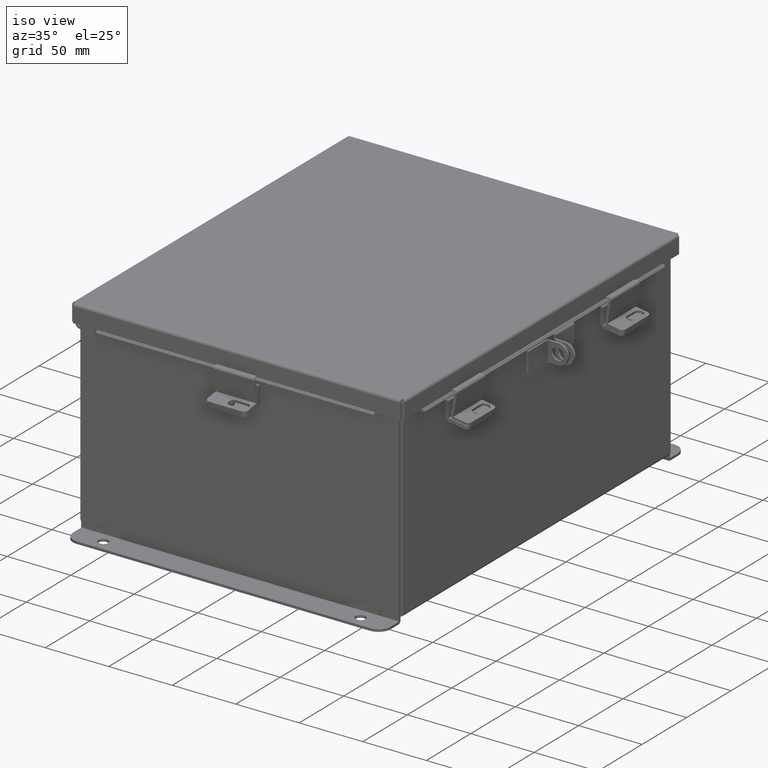
[diagram: clean part render]
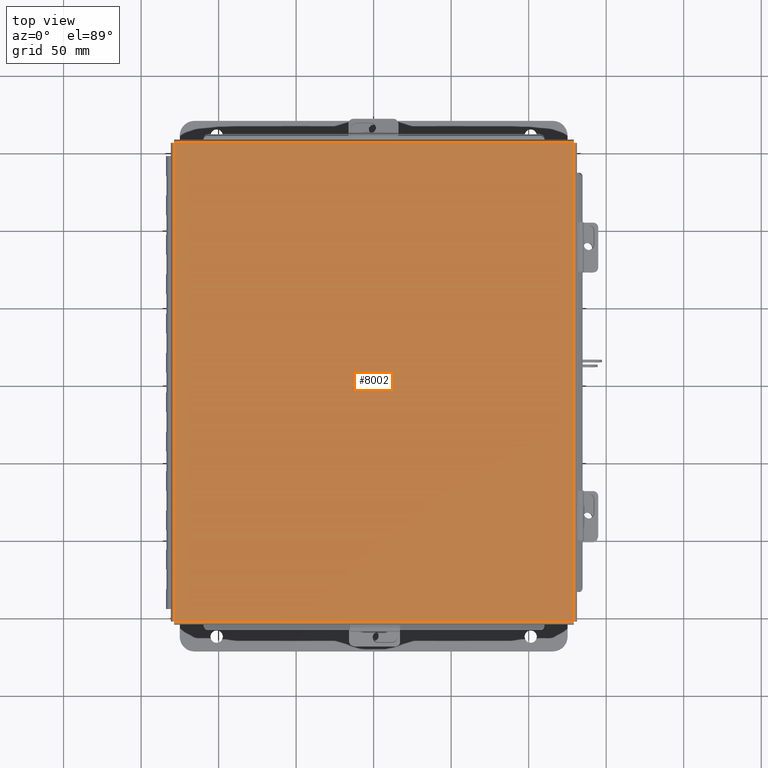
[diagram: tour spotlight — one face highlighted and labeled with its STEP entity id]
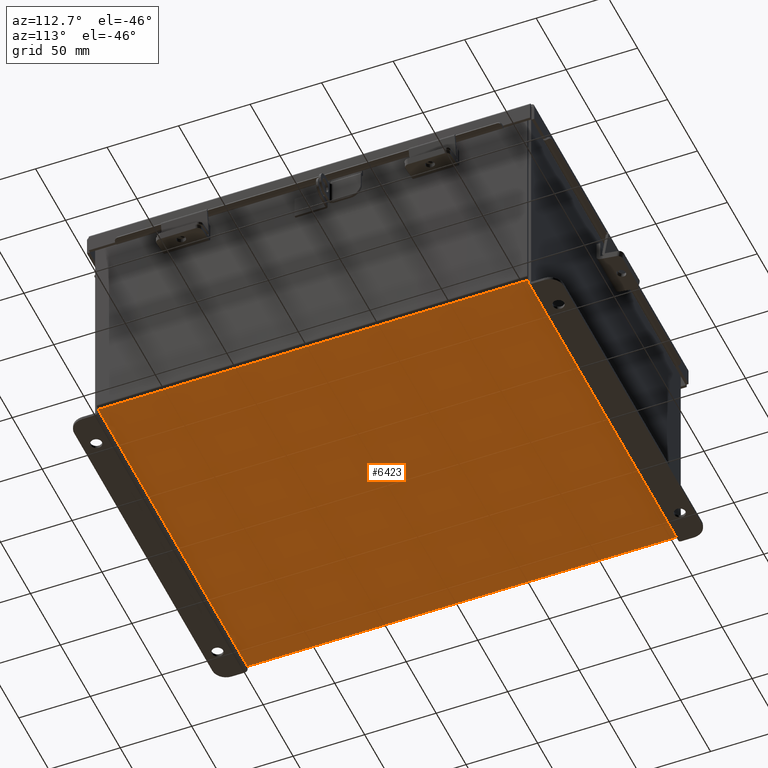
[diagram: tour spotlight — one face highlighted and labeled with its STEP entity id]
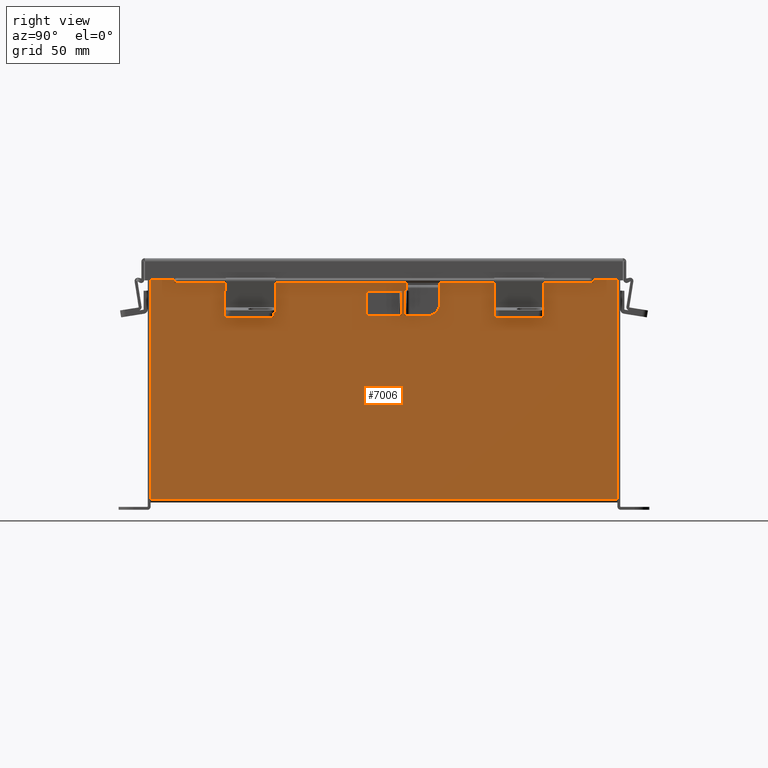
[diagram: tour spotlight — one face highlighted and labeled with its STEP entity id]
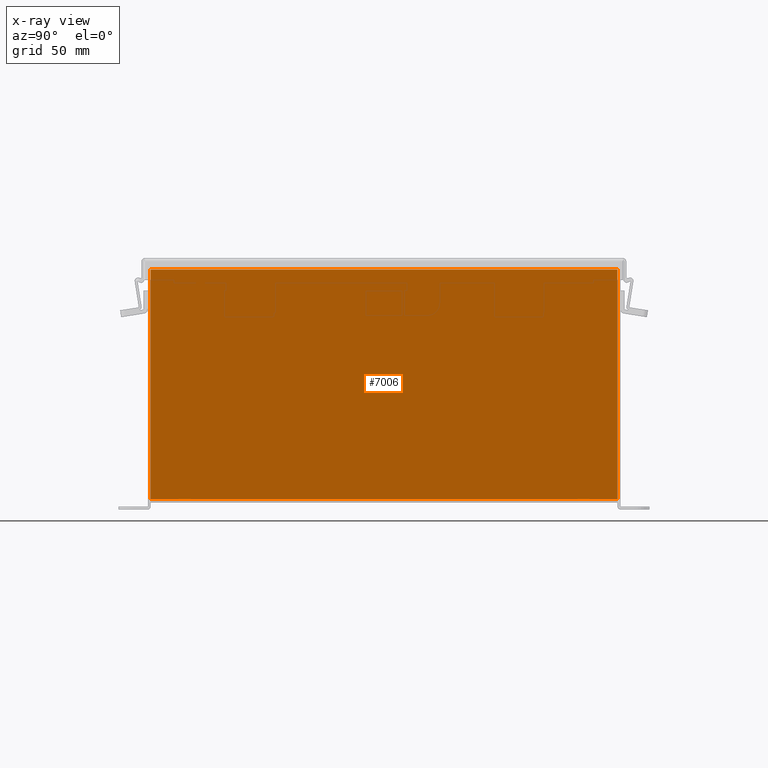
[diagram: x-ray of the same camera — body ghosted, this tour face saturated]
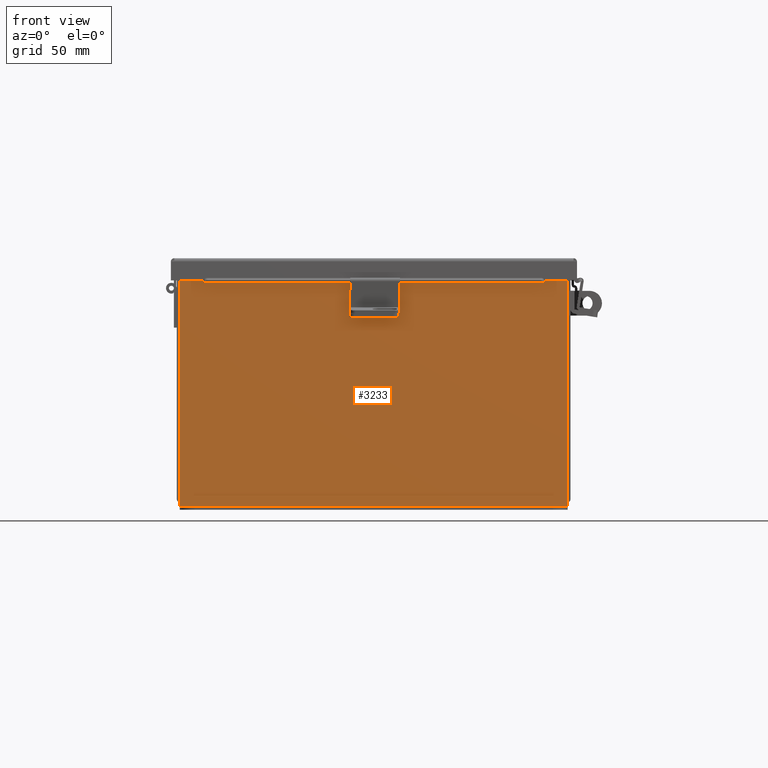
[diagram: tour spotlight — one face highlighted and labeled with its STEP entity id]
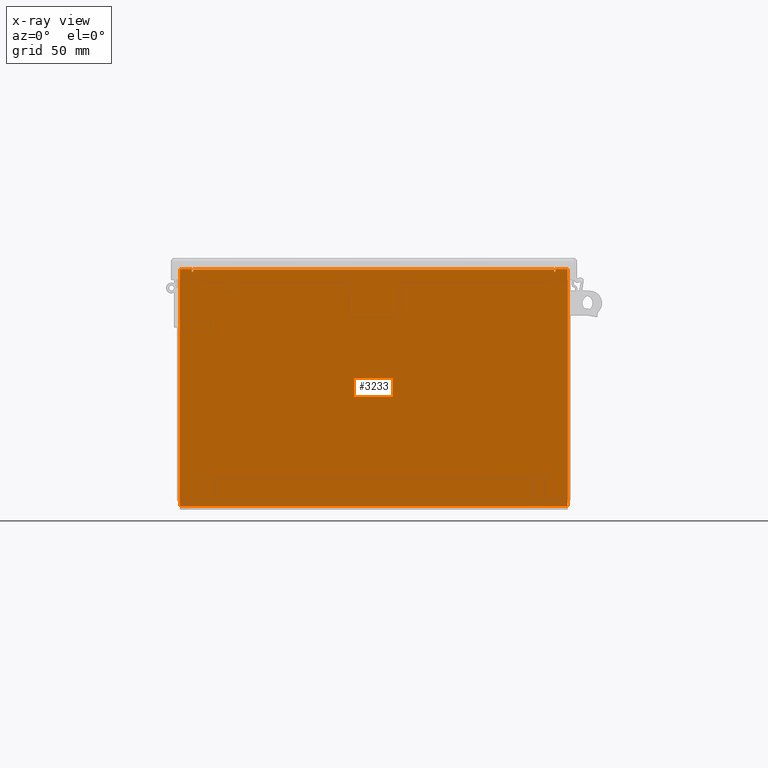
[diagram: x-ray of the same camera — body ghosted, this tour face saturated]
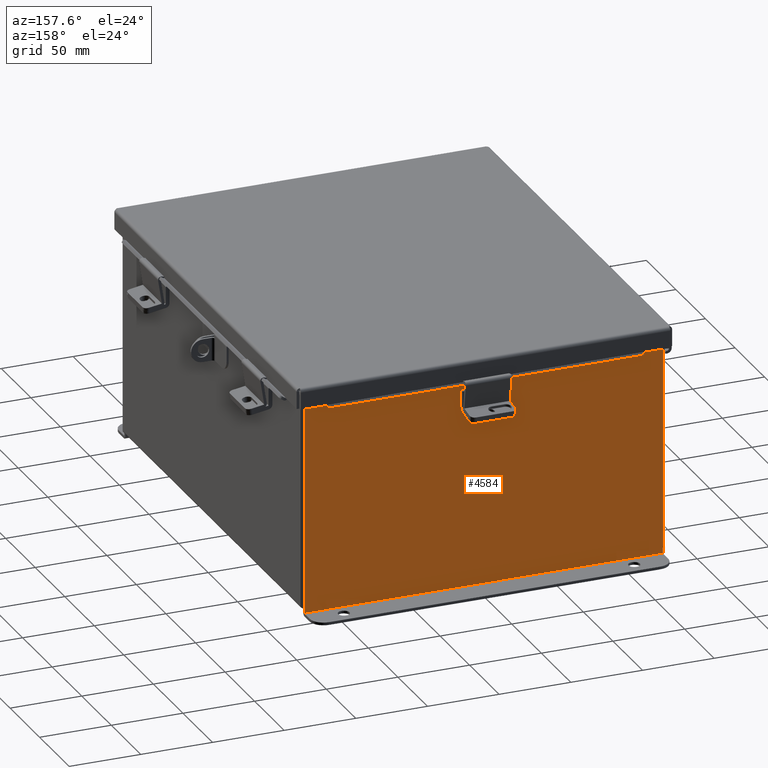
[diagram: tour spotlight — one face highlighted and labeled with its STEP entity id]
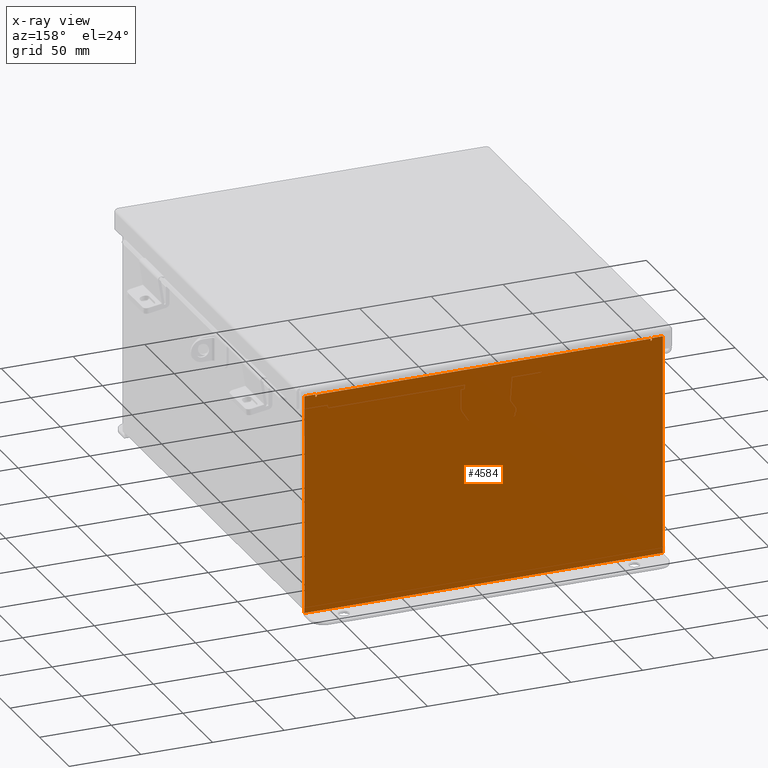
[diagram: x-ray of the same camera — body ghosted, this tour face saturated]
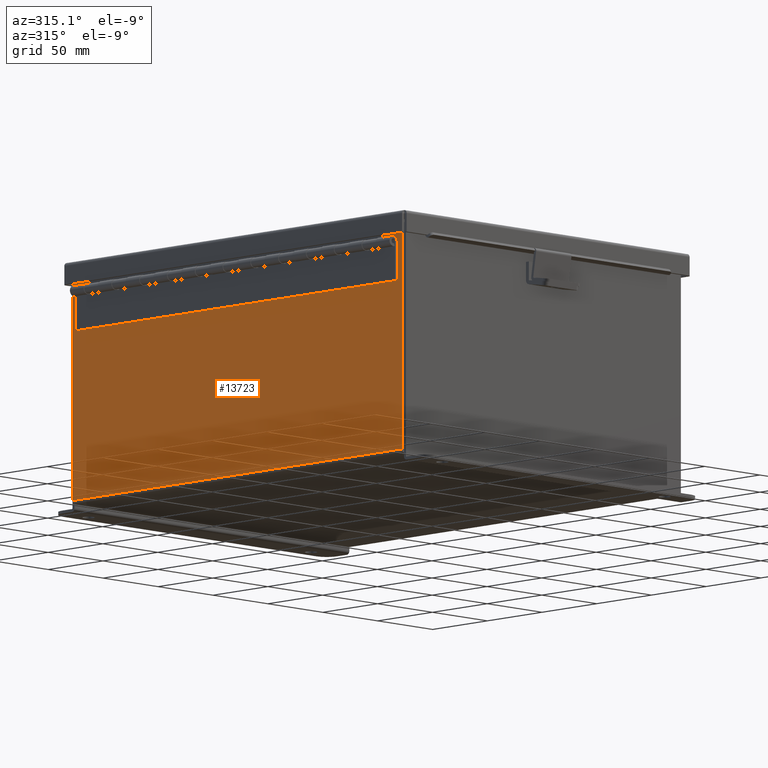
[diagram: tour spotlight — one face highlighted and labeled with its STEP entity id]
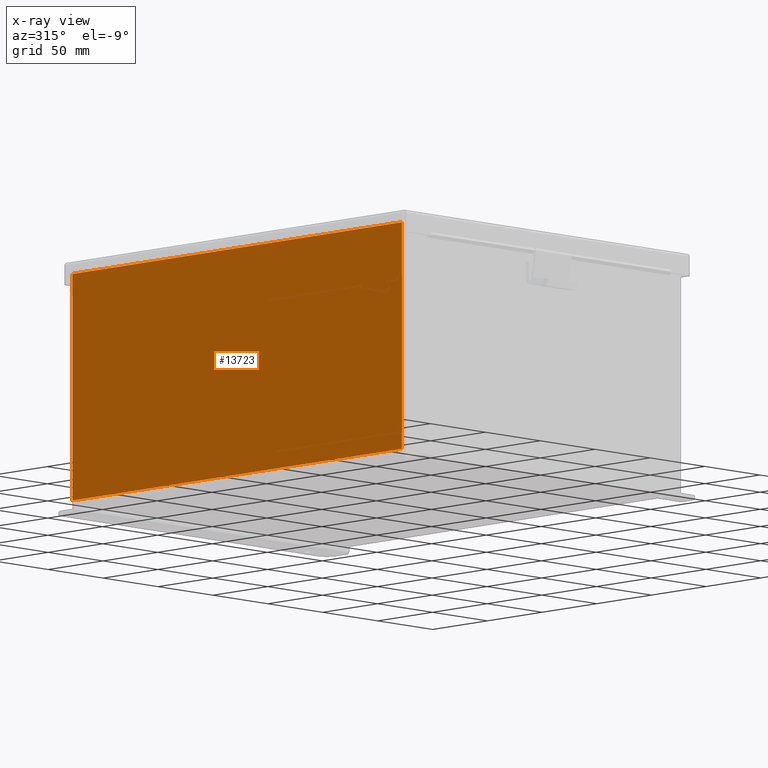
[diagram: x-ray of the same camera — body ghosted, this tour face saturated]
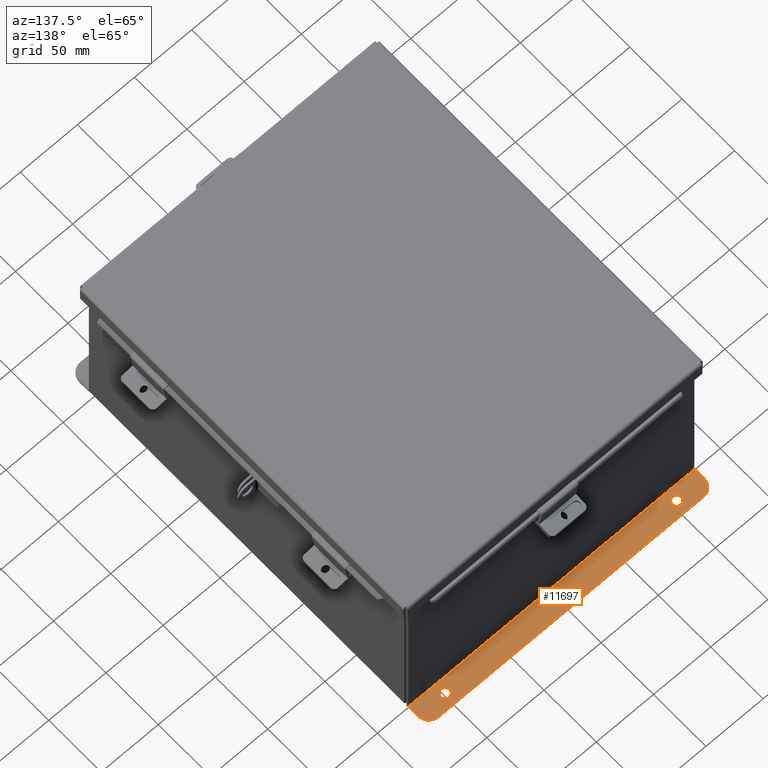
[diagram: tour spotlight — one face highlighted and labeled with its STEP entity id]
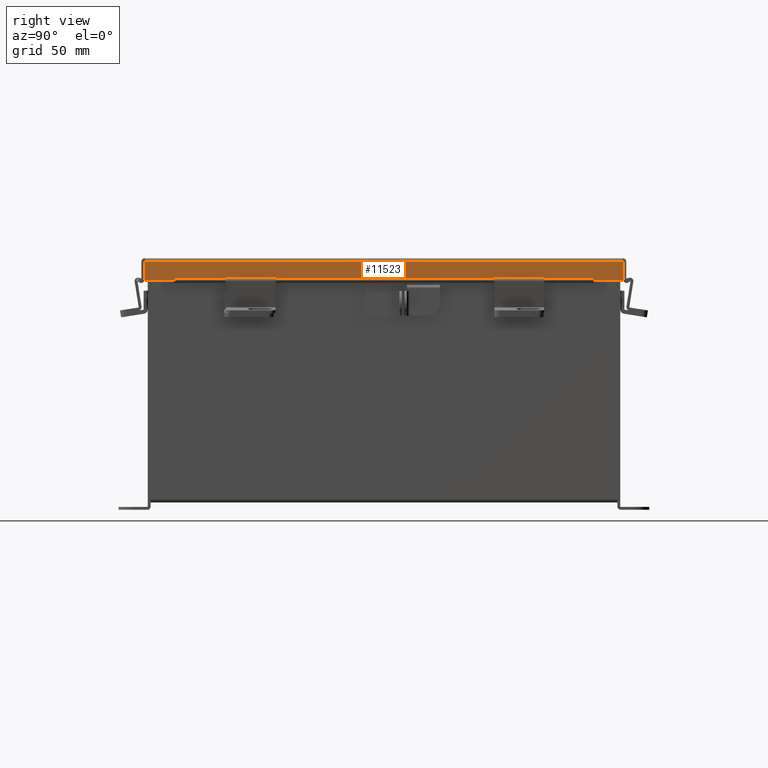
[diagram: tour spotlight — one face highlighted and labeled with its STEP entity id]
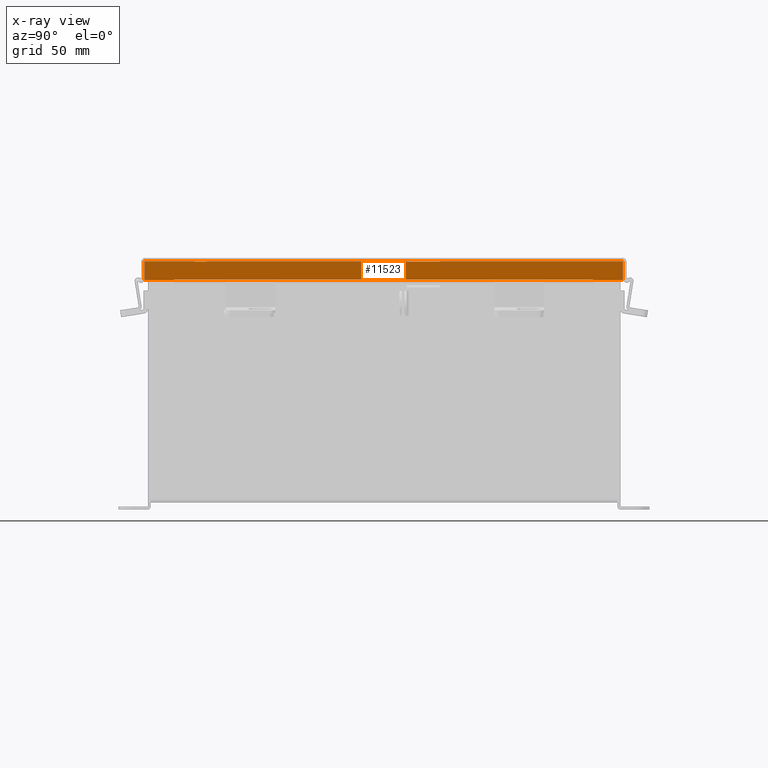
[diagram: x-ray of the same camera — body ghosted, this tour face saturated]
A machine part: a face-by-face anatomy tour. The part has 702 B-rep faces; the first image is the clean iso view, then the 8 largest visible faces are spotlighted one at a time (largest first), each with its STEP entity span.

Face 1 — top view, entity #8002. In plain terms, the highlighted planar face has unit normal (-0, -0, 1).
Definition (entity closure, byte-faithful):
#256 = VECTOR ( 'NONE', #15781, 39.37007874015748100 ) ;
#1142 = LINE ( 'NONE', #16550, #256 ) ;
#1241 = CARTESIAN_POINT ( 'NONE',  ( 5.068550000000001000, -6.068549999999999200, -0.07469999999999993300 ) ) ;
#1806 = CARTESIAN_POINT ( 'NONE',  ( -5.068549999999998300, 6.068550000000001000, -0.07469999999999993300 ) ) ;
#1822 = ORIENTED_EDGE ( 'NONE', *, *, #5499, .T. ) ;
#2080 = VERTEX_POINT ( 'NONE', #4719 ) ;
#2337 = VECTOR ( 'NONE', #4346, 39.37007874015748100 ) ;
#3001 = CARTESIAN_POINT ( 'NONE',  ( -5.074478932188135600, 6.068550000000001000, -0.07469999999999993300 ) ) ;
#3491 = EDGE_CURVE ( 'NONE', #3769, #15117, #1142, .T. ) ;
#3769 = VERTEX_POINT ( 'NONE', #16131 ) ;
#4346 = DIRECTION ( 'NONE',  ( 1.000000000000000000, 0.0000000000000000000, 0.0000000000000000000 ) ) ;
#4606 = DIRECTION ( 'NONE',  ( -1.000000000000000000, 0.0000000000000000000, -0.0000000000000000000 ) ) ;
#4719 = CARTESIAN_POINT ( 'NONE',  ( -5.068549999999998300, -6.068549999999999200, -0.07469999999999993300 ) ) ;
#4849 = ORIENTED_EDGE ( 'NONE', *, *, #13600, .T. ) ;
#4909 = VECTOR ( 'NONE', #12937, 39.37007874015748100 ) ;
#5499 = EDGE_CURVE ( 'NONE', #2080, #5628, #12866, .T. ) ;
#5628 = VERTEX_POINT ( 'NONE', #1806 ) ;
#5986 = VECTOR ( 'NONE', #9674, 39.37007874015748100 ) ;
#7407 = EDGE_CURVE ( 'NONE', #15117, #2080, #8956, .T. ) ;
#8002 = ADVANCED_FACE ( 'NONE', ( #10884 ), #11449, .T. ) ;
#8956 = LINE ( 'NONE', #17058, #4909 ) ;
#9674 = DIRECTION ( 'NONE',  ( -0.0000000000000000000, 1.000000000000000000, -0.0000000000000000000 ) ) ;
#10144 = ORIENTED_EDGE ( 'NONE', *, *, #3491, .T. ) ;
#10804 = EDGE_LOOP ( 'NONE', ( #4849, #10144, #16832, #1822 ) ) ;
#10884 = FACE_OUTER_BOUND ( 'NONE', #10804, .T. ) ;
#11449 = PLANE ( 'NONE',  #17426 ) ;
#12829 = DIRECTION ( 'NONE',  ( 0.0000000000000000000, 0.0000000000000000000, -1.000000000000000000 ) ) ;
#12866 = LINE ( 'NONE', #14228, #5986 ) ;
#12937 = DIRECTION ( 'NONE',  ( -1.000000000000000000, 0.0000000000000000000, 0.0000000000000000000 ) ) ;
#13282 = LINE ( 'NONE', #3001, #2337 ) ;
#13600 = EDGE_CURVE ( 'NONE', #5628, #3769, #13282, .T. ) ;
#14228 = CARTESIAN_POINT ( 'NONE',  ( -5.068549999999998300, -6.074478932188134700, -0.07469999999999993300 ) ) ;
#15117 = VERTEX_POINT ( 'NONE', #1241 ) ;
#15536 = CARTESIAN_POINT ( 'NONE',  ( 0.0000000000000000000, 0.0000000000000000000, -0.07470000000000000300 ) ) ;
#15781 = DIRECTION ( 'NONE',  ( -0.0000000000000000000, -1.000000000000000000, -0.0000000000000000000 ) ) ;
#16131 = CARTESIAN_POINT ( 'NONE',  ( 5.068550000000001000, 6.068550000000001000, -0.07469999999999993300 ) ) ;
#16550 = CARTESIAN_POINT ( 'NONE',  ( 5.068550000000001000, 6.074478932188137400, -0.07469999999999993300 ) ) ;
#16832 = ORIENTED_EDGE ( 'NONE', *, *, #7407, .T. ) ;
#17058 = CARTESIAN_POINT ( 'NONE',  ( 5.074478932188137400, -6.068549999999999200, -0.07469999999999993300 ) ) ;
#17426 = AXIS2_PLACEMENT_3D ( 'NONE', #15536, #12829, #4606 ) ;

Face 2 — auxiliary view, entity #6423. In plain terms, the highlighted planar face has unit normal (0, 0, -1).
Definition (entity closure, byte-faithful):
#90 = VERTEX_POINT ( 'NONE', #12421 ) ;
#866 = VECTOR ( 'NONE', #1038, 39.37007874015748100 ) ;
#982 = CARTESIAN_POINT ( 'NONE',  ( -5.000000000000000000, -5.925300000000000000, -0.07470000000000000300 ) ) ;
#1038 = DIRECTION ( 'NONE',  ( 1.000000000000000000, 0.0000000000000000000, 0.0000000000000000000 ) ) ;
#1229 = VECTOR ( 'NONE', #1921, 39.37007874015748100 ) ;
#1887 = CARTESIAN_POINT ( 'NONE',  ( 4.912300000000000100, -5.925300000000000000, -0.07470000000000000300 ) ) ;
#1921 = DIRECTION ( 'NONE',  ( -1.000000000000000000, -0.0000000000000000000, -0.0000000000000000000 ) ) ;
#2365 = EDGE_CURVE ( 'NONE', #90, #4526, #5053, .T. ) ;
#2686 = ORIENTED_EDGE ( 'NONE', *, *, #2365, .T. ) ;
#2933 = DIRECTION ( 'NONE',  ( -0.0000000000000000000, -1.000000000000000000, -0.0000000000000000000 ) ) ;
#3611 = ORIENTED_EDGE ( 'NONE', *, *, #5658, .T. ) ;
#3923 = ORIENTED_EDGE ( 'NONE', *, *, #4809, .F. ) ;
#4526 = VERTEX_POINT ( 'NONE', #1887 ) ;
#4539 = VERTEX_POINT ( 'NONE', #12473 ) ;
#4809 = EDGE_CURVE ( 'NONE', #4539, #4526, #11804, .T. ) ;
#4978 = VERTEX_POINT ( 'NONE', #15654 ) ;
#5053 = LINE ( 'NONE', #6325, #16439 ) ;
#5658 = EDGE_CURVE ( 'NONE', #4539, #4978, #14335, .T. ) ;
#6325 = CARTESIAN_POINT ( 'NONE',  ( 4.912300000000000100, 5.925300000000000000, -0.07469999999999994700 ) ) ;
#6423 = ADVANCED_FACE ( 'NONE', ( #7676 ), #12256, .T. ) ;
#7676 = FACE_OUTER_BOUND ( 'NONE', #8462, .T. ) ;
#7905 = VECTOR ( 'NONE', #8536, 39.37007874015748100 ) ;
#8462 = EDGE_LOOP ( 'NONE', ( #17031, #2686, #3923, #3611 ) ) ;
#8536 = DIRECTION ( 'NONE',  ( -0.0000000000000000000, 1.000000000000000000, -0.0000000000000000000 ) ) ;
#8775 = CARTESIAN_POINT ( 'NONE',  ( -5.000000000000000000, 5.925300000000000000, -0.07470000000000000300 ) ) ;
#8904 = LINE ( 'NONE', #8775, #1229 ) ;
#8970 = EDGE_CURVE ( 'NONE', #90, #4978, #8904, .T. ) ;
#9737 = CARTESIAN_POINT ( 'NONE',  ( -4.912300000000000100, -5.925300000000000000, -0.07469999999999994700 ) ) ;
#10815 = DIRECTION ( 'NONE',  ( 0.0000000000000000000, 0.0000000000000000000, -1.000000000000000000 ) ) ;
#11784 = CARTESIAN_POINT ( 'NONE',  ( 0.0000000000000000000, 0.0000000000000000000, -0.07470000000000000300 ) ) ;
#11804 = LINE ( 'NONE', #982, #866 ) ;
#12256 = PLANE ( 'NONE',  #15589 ) ;
#12421 = CARTESIAN_POINT ( 'NONE',  ( 4.912300000000000100, 5.925299999999997300, -0.07469999999999994700 ) ) ;
#12473 = CARTESIAN_POINT ( 'NONE',  ( -4.912300000000000100, -5.925299999999997300, -0.07469999999999994700 ) ) ;
#13821 = DIRECTION ( 'NONE',  ( -1.000000000000000000, 0.0000000000000000000, -0.0000000000000000000 ) ) ;
#14335 = LINE ( 'NONE', #9737, #7905 ) ;
#15589 = AXIS2_PLACEMENT_3D ( 'NONE', #11784, #10815, #13821 ) ;
#15654 = CARTESIAN_POINT ( 'NONE',  ( -4.912300000000000100, 5.925300000000000000, -0.07470000000000000300 ) ) ;
#16439 = VECTOR ( 'NONE', #2933, 39.37007874015748100 ) ;
#17031 = ORIENTED_EDGE ( 'NONE', *, *, #8970, .F. ) ;

Face 3 — right view, entity #7006. An x-ray twin of the same camera follows (body ghosted, this face saturated) — the face is partly hidden behind the body. In plain terms, the highlighted planar face has unit normal (-1, 0, 0).
Definition (entity closure, byte-faithful):
#746 = DIRECTION ( 'NONE',  ( -0.0000000000000000000, -1.000000000000000000, -0.0000000000000000000 ) ) ;
#1451 = VECTOR ( 'NONE', #2001, 39.37007874015748100 ) ;
#1454 = CARTESIAN_POINT ( 'NONE',  ( 5.000000000000000000, -5.925300000000000000, 0.01299999999999984300 ) ) ;
#1918 = EDGE_CURVE ( 'NONE', #5980, #5562, #7842, .T. ) ;
#2001 = DIRECTION ( 'NONE',  ( 3.548703509357741800E-015, -1.867738689135653700E-016, 1.000000000000000000 ) ) ;
#2235 = DIRECTION ( 'NONE',  ( -1.000000000000000000, 0.0000000000000000000, 3.548703509357741000E-015 ) ) ;
#2349 = CARTESIAN_POINT ( 'NONE',  ( 5.000000000000021300, 5.925299999999997300, 5.837599999999999200 ) ) ;
#2866 = AXIS2_PLACEMENT_3D ( 'NONE', #17256, #2235, #11803 ) ;
#3897 = VERTEX_POINT ( 'NONE', #12211 ) ;
#4374 = ORIENTED_EDGE ( 'NONE', *, *, #11462, .F. ) ;
#4433 = CARTESIAN_POINT ( 'NONE',  ( 5.000000000000000000, -5.925300000000000000, -1.800458568324353400E-014 ) ) ;
#4649 = LINE ( 'NONE', #10167, #1451 ) ;
#5341 = DIRECTION ( 'NONE',  ( -0.0000000000000000000, -1.000000000000000000, -0.0000000000000000000 ) ) ;
#5562 = VERTEX_POINT ( 'NONE', #1454 ) ;
#5980 = VERTEX_POINT ( 'NONE', #13602 ) ;
#6175 = CARTESIAN_POINT ( 'NONE',  ( 5.000000000000000000, -5.925300000000000000, 0.01299999999999984300 ) ) ;
#7006 = ADVANCED_FACE ( 'NONE', ( #15171 ), #10402, .F. ) ;
#7842 = LINE ( 'NONE', #4433, #14688 ) ;
#9245 = ORIENTED_EDGE ( 'NONE', *, *, #1918, .T. ) ;
#9832 = LINE ( 'NONE', #14899, #13096 ) ;
#10167 = CARTESIAN_POINT ( 'NONE',  ( 5.000000000000000000, 5.925300000000000000, -1.689477243581742800E-014 ) ) ;
#10376 = VERTEX_POINT ( 'NONE', #2349 ) ;
#10402 = PLANE ( 'NONE',  #2866 ) ;
#10414 = EDGE_LOOP ( 'NONE', ( #15751, #9245, #4374, #15292 ) ) ;
#11462 = EDGE_CURVE ( 'NONE', #3897, #5562, #14834, .T. ) ;
#11803 = DIRECTION ( 'NONE',  ( 3.548703509357741000E-015, 0.0000000000000000000, 1.000000000000000000 ) ) ;
#12211 = CARTESIAN_POINT ( 'NONE',  ( 5.000000000000000000, 5.925299999999998200, 0.01299999999999984300 ) ) ;
#12969 = EDGE_CURVE ( 'NONE', #10376, #5980, #9832, .T. ) ;
#13096 = VECTOR ( 'NONE', #5341, 39.37007874015748100 ) ;
#13602 = CARTESIAN_POINT ( 'NONE',  ( 5.000000000000021300, -5.925300000000000000, 5.837599999999999200 ) ) ;
#14405 = VECTOR ( 'NONE', #746, 39.37007874015748100 ) ;
#14610 = DIRECTION ( 'NONE',  ( -3.548703509357741800E-015, 0.0000000000000000000, -1.000000000000000000 ) ) ;
#14688 = VECTOR ( 'NONE', #14610, 39.37007874015748100 ) ;
#14834 = LINE ( 'NONE', #6175, #14405 ) ;
#14899 = CARTESIAN_POINT ( 'NONE',  ( 5.000000000000021300, 5.925299999999998200, 5.837599999999999200 ) ) ;
#15171 = FACE_OUTER_BOUND ( 'NONE', #10414, .T. ) ;
#15292 = ORIENTED_EDGE ( 'NONE', *, *, #15463, .T. ) ;
#15463 = EDGE_CURVE ( 'NONE', #3897, #10376, #4649, .T. ) ;
#15751 = ORIENTED_EDGE ( 'NONE', *, *, #12969, .T. ) ;
#17256 = CARTESIAN_POINT ( 'NONE',  ( 5.000000000000000000, 0.0000000000000000000, -1.800458568324353400E-014 ) ) ;

Face 4 — front view, entity #3233. An x-ray twin of the same camera follows (body ghosted, this face saturated) — the face is partly hidden behind the body. In plain terms, the highlighted planar face has unit normal (-0, 1, -0).
Definition (entity closure, byte-faithful):
#4 = CARTESIAN_POINT ( 'NONE',  ( -4.925300000000000900, -8.741913579725642300E-015, -3.099299999999999500 ) ) ;
#203 = LINE ( 'NONE', #2339, #9374 ) ;
#312 = CARTESIAN_POINT ( 'NONE',  ( 4.619649999999999100, 8.741913579725642300E-015, 2.874949999999999700 ) ) ;
#339 = CARTESIAN_POINT ( 'NONE',  ( -4.619650000000000000, 0.0000000000000000000, 2.925300000000000000 ) ) ;
#554 = CIRCLE ( 'NONE', #15173, 0.01867500000000003900 ) ;
#571 = CARTESIAN_POINT ( 'NONE',  ( -4.925300000000000000, -8.741913579725642300E-015, -3.099299999999999500 ) ) ;
#716 = LINE ( 'NONE', #10626, #7566 ) ;
#943 = DIRECTION ( 'NONE',  ( 1.000000000000000000, 4.910036603141682400E-031, 0.0000000000000000000 ) ) ;
#1007 = LINE ( 'NONE', #13766, #8264 ) ;
#1236 = EDGE_LOOP ( 'NONE', ( #11552, #17363, #1947, #9112, #3504, #10234, #13730, #13326, #8343, #11144, #6650, #6209 ) ) ;
#1391 = CARTESIAN_POINT ( 'NONE',  ( -4.925300000000000000, 0.0000000000000000000, 2.925300000000001300 ) ) ;
#1808 = VERTEX_POINT ( 'NONE', #3968 ) ;
#1947 = ORIENTED_EDGE ( 'NONE', *, *, #2972, .F. ) ;
#2339 = CARTESIAN_POINT ( 'NONE',  ( 4.582299999999999200, 0.0000000000000000000, 0.0000000000000000000 ) ) ;
#2972 = EDGE_CURVE ( 'NONE', #11763, #7408, #716, .T. ) ;
#3187 = LINE ( 'NONE', #11558, #16902 ) ;
#3189 = CARTESIAN_POINT ( 'NONE',  ( -4.619650000000000000, 0.0000000000000000000, 2.874949999999998800 ) ) ;
#3208 = LINE ( 'NONE', #1391, #16928 ) ;
#3233 = ADVANCED_FACE ( 'NONE', ( #3719 ), #12887, .F. ) ;
#3504 = ORIENTED_EDGE ( 'NONE', *, *, #13392, .F. ) ;
#3719 = FACE_OUTER_BOUND ( 'NONE', #1236, .T. ) ;
#3737 = VERTEX_POINT ( 'NONE', #9076 ) ;
#3968 = CARTESIAN_POINT ( 'NONE',  ( 4.582299999999999200, 8.741913579725642300E-015, 2.874949999999999700 ) ) ;
#4096 = AXIS2_PLACEMENT_3D ( 'NONE', #5829, #15431, #7207 ) ;
#4434 = VECTOR ( 'NONE', #15015, 39.37007874015748100 ) ;
#5186 = CARTESIAN_POINT ( 'NONE',  ( -4.619650000000000000, 0.0000000000000000000, 0.0000000000000000000 ) ) ;
#5489 = LINE ( 'NONE', #6684, #11911 ) ;
#5631 = VERTEX_POINT ( 'NONE', #3189 ) ;
#5829 = CARTESIAN_POINT ( 'NONE',  ( -4.600975000000000000, 0.0000000000000000000, 2.874949999999998800 ) ) ;
#5842 = VERTEX_POINT ( 'NONE', #571 ) ;
#5984 = EDGE_CURVE ( 'NONE', #5842, #3737, #3208, .T. ) ;
#6209 = ORIENTED_EDGE ( 'NONE', *, *, #9180, .T. ) ;
#6650 = ORIENTED_EDGE ( 'NONE', *, *, #5984, .T. ) ;
#6684 = CARTESIAN_POINT ( 'NONE',  ( -4.925300000000000000, 0.0000000000000000000, 2.925300000000001300 ) ) ;
#7170 = DIRECTION ( 'NONE',  ( 1.000000000000000000, 4.910036603141682400E-031, -0.0000000000000000000 ) ) ;
#7207 = DIRECTION ( 'NONE',  ( 0.0000000000000000000, 0.0000000000000000000, -1.000000000000000000 ) ) ;
#7272 = EDGE_CURVE ( 'NONE', #11763, #16415, #13901, .T. ) ;
#7363 = DIRECTION ( 'NONE',  ( 0.0000000000000000000, 0.0000000000000000000, -1.000000000000000000 ) ) ;
#7408 = VERTEX_POINT ( 'NONE', #7459 ) ;
#7458 = CARTESIAN_POINT ( 'NONE',  ( 4.582299999999999200, 8.741913579725642300E-015, 2.912299999999998800 ) ) ;
#7459 = CARTESIAN_POINT ( 'NONE',  ( -4.582300000000000000, 0.0000000000000000000, 2.874949999999998800 ) ) ;
#7465 = VERTEX_POINT ( 'NONE', #14463 ) ;
#7566 = VECTOR ( 'NONE', #9471, 39.37007874015748100 ) ;
#7712 = CARTESIAN_POINT ( 'NONE',  ( 4.600974999999999100, 8.741913579725642300E-015, 2.874949999999999700 ) ) ;
#8066 = EDGE_CURVE ( 'NONE', #13974, #13934, #3187, .T. ) ;
#8179 = LINE ( 'NONE', #9109, #15502 ) ;
#8264 = VECTOR ( 'NONE', #16537, 39.37007874015748100 ) ;
#8343 = ORIENTED_EDGE ( 'NONE', *, *, #8066, .T. ) ;
#8424 = EDGE_CURVE ( 'NONE', #5842, #13934, #8488, .T. ) ;
#8488 = LINE ( 'NONE', #4, #4434 ) ;
#8728 = EDGE_CURVE ( 'NONE', #7465, #14184, #1007, .T. ) ;
#8786 = DIRECTION ( 'NONE',  ( 0.0000000000000000000, 0.0000000000000000000, -1.000000000000000000 ) ) ;
#8838 = VERTEX_POINT ( 'NONE', #339 ) ;
#9076 = CARTESIAN_POINT ( 'NONE',  ( -4.925300000000000000, 0.0000000000000000000, 2.925300000000001300 ) ) ;
#9078 = DIRECTION ( 'NONE',  ( 0.0000000000000000000, 0.0000000000000000000, -1.000000000000000000 ) ) ;
#9109 = CARTESIAN_POINT ( 'NONE',  ( -4.925300000000000000, 0.0000000000000000000, 2.925300000000001300 ) ) ;
#9112 = ORIENTED_EDGE ( 'NONE', *, *, #7272, .T. ) ;
#9180 = EDGE_CURVE ( 'NONE', #3737, #8838, #5489, .T. ) ;
#9374 = VECTOR ( 'NONE', #13477, 39.37007874015748100 ) ;
#9471 = DIRECTION ( 'NONE',  ( 0.0000000000000000000, 0.0000000000000000000, -1.000000000000000000 ) ) ;
#9598 = DIRECTION ( 'NONE',  ( 0.0000000000000000000, 0.0000000000000000000, 1.000000000000000000 ) ) ;
#9767 = AXIS2_PLACEMENT_3D ( 'NONE', #13074, #13135, #7363 ) ;
#10234 = ORIENTED_EDGE ( 'NONE', *, *, #15971, .F. ) ;
#10626 = CARTESIAN_POINT ( 'NONE',  ( -4.582300000000000000, 0.0000000000000000000, 0.0000000000000000000 ) ) ;
#11144 = ORIENTED_EDGE ( 'NONE', *, *, #8424, .F. ) ;
#11552 = ORIENTED_EDGE ( 'NONE', *, *, #16640, .F. ) ;
#11558 = CARTESIAN_POINT ( 'NONE',  ( 4.925299999999999100, 8.741913579725642300E-015, 2.925300000000000000 ) ) ;
#11668 = EDGE_CURVE ( 'NONE', #7465, #13974, #8179, .T. ) ;
#11763 = VERTEX_POINT ( 'NONE', #16236 ) ;
#11911 = VECTOR ( 'NONE', #17633, 39.37007874015748100 ) ;
#11997 = EDGE_CURVE ( 'NONE', #7408, #5631, #12689, .T. ) ;
#12689 = CIRCLE ( 'NONE', #4096, 0.01867500000000003900 ) ;
#12887 = PLANE ( 'NONE',  #9767 ) ;
#13074 = CARTESIAN_POINT ( 'NONE',  ( 0.0000000000000000000, 0.0000000000000000000, 0.0000000000000000000 ) ) ;
#13135 = DIRECTION ( 'NONE',  ( -4.910036603141682400E-031, -1.000000000000000000, -0.0000000000000000000 ) ) ;
#13326 = ORIENTED_EDGE ( 'NONE', *, *, #11668, .T. ) ;
#13392 = EDGE_CURVE ( 'NONE', #1808, #16415, #203, .T. ) ;
#13413 = DIRECTION ( 'NONE',  ( 0.0000000000000000000, 0.0000000000000000000, 1.000000000000000000 ) ) ;
#13423 = VECTOR ( 'NONE', #13413, 39.37007874015748100 ) ;
#13458 = CARTESIAN_POINT ( 'NONE',  ( 4.925299999999999100, 8.741913579725642300E-015, 2.925300000000000000 ) ) ;
#13477 = DIRECTION ( 'NONE',  ( 0.0000000000000000000, 0.0000000000000000000, 1.000000000000000000 ) ) ;
#13730 = ORIENTED_EDGE ( 'NONE', *, *, #8728, .F. ) ;
#13766 = CARTESIAN_POINT ( 'NONE',  ( 4.619649999999937000, 0.0000000000000000000, -9.998563656811202900E-014 ) ) ;
#13901 = LINE ( 'NONE', #15390, #14332 ) ;
#13934 = VERTEX_POINT ( 'NONE', #17386 ) ;
#13974 = VERTEX_POINT ( 'NONE', #13458 ) ;
#14184 = VERTEX_POINT ( 'NONE', #312 ) ;
#14332 = VECTOR ( 'NONE', #7170, 39.37007874015748100 ) ;
#14463 = CARTESIAN_POINT ( 'NONE',  ( 4.619649999999999100, 8.741913579725642300E-015, 2.925300000000001300 ) ) ;
#15015 = DIRECTION ( 'NONE',  ( 1.000000000000000000, 4.910036603141682400E-031, -0.0000000000000000000 ) ) ;
#15173 = AXIS2_PLACEMENT_3D ( 'NONE', #7712, #17304, #9078 ) ;
#15390 = CARTESIAN_POINT ( 'NONE',  ( -4.582300000000000000, 2.185478394931410600E-015, 2.912300000000000100 ) ) ;
#15431 = DIRECTION ( 'NONE',  ( 4.910036603141682400E-031, 1.000000000000000000, -0.0000000000000000000 ) ) ;
#15502 = VECTOR ( 'NONE', #943, 39.37007874015748100 ) ;
#15971 = EDGE_CURVE ( 'NONE', #14184, #1808, #554, .T. ) ;
#16236 = CARTESIAN_POINT ( 'NONE',  ( -4.582300000000000000, 2.185478394931410600E-015, 2.912300000000000100 ) ) ;
#16415 = VERTEX_POINT ( 'NONE', #7458 ) ;
#16537 = DIRECTION ( 'NONE',  ( -2.170286390199955400E-014, -7.888609052210118100E-031, -1.000000000000000000 ) ) ;
#16640 = EDGE_CURVE ( 'NONE', #5631, #8838, #17048, .T. ) ;
#16902 = VECTOR ( 'NONE', #8786, 39.37007874015748100 ) ;
#16928 = VECTOR ( 'NONE', #9598, 39.37007874015748100 ) ;
#17048 = LINE ( 'NONE', #5186, #13423 ) ;
#17304 = DIRECTION ( 'NONE',  ( 4.910036603141682400E-031, 1.000000000000000000, -0.0000000000000000000 ) ) ;
#17363 = ORIENTED_EDGE ( 'NONE', *, *, #11997, .F. ) ;
#17386 = CARTESIAN_POINT ( 'NONE',  ( 4.925299999999999100, 0.0000000000000000000, -3.099299999999999500 ) ) ;
#17633 = DIRECTION ( 'NONE',  ( 1.000000000000000000, 4.910036603141682400E-031, 0.0000000000000000000 ) ) ;

Face 5 — auxiliary view, entity #4584. An x-ray twin of the same camera follows (body ghosted, this face saturated) — the face is partly hidden behind the body. In plain terms, the highlighted planar face has unit normal (0, -1, 0).
Definition (entity closure, byte-faithful):
#373 = DIRECTION ( 'NONE',  ( 0.0000000000000000000, -0.0000000000000000000, -1.000000000000000000 ) ) ;
#461 = ORIENTED_EDGE ( 'NONE', *, *, #7491, .F. ) ;
#508 = AXIS2_PLACEMENT_3D ( 'NONE', #3290, #12878, #4658 ) ;
#711 = DIRECTION ( 'NONE',  ( -0.0000000000000000000, -0.0000000000000000000, 1.000000000000000000 ) ) ;
#753 = EDGE_CURVE ( 'NONE', #13737, #14163, #17323, .T. ) ;
#789 = LINE ( 'NONE', #9310, #7633 ) ;
#961 = VERTEX_POINT ( 'NONE', #12542 ) ;
#1031 = CARTESIAN_POINT ( 'NONE',  ( -4.619649999999997400, 0.0000000000000000000, 2.925300000000000500 ) ) ;
#1112 = ORIENTED_EDGE ( 'NONE', *, *, #15710, .F. ) ;
#1155 = VERTEX_POINT ( 'NONE', #16975 ) ;
#1183 = ORIENTED_EDGE ( 'NONE', *, *, #7745, .T. ) ;
#1328 = VERTEX_POINT ( 'NONE', #5890 ) ;
#1936 = LINE ( 'NONE', #10270, #4711 ) ;
#1962 = CARTESIAN_POINT ( 'NONE',  ( 4.582300000000000000, 0.0000000000000000000, 2.874949999999999200 ) ) ;
#2532 = DIRECTION ( 'NONE',  ( 0.0000000000000000000, 0.0000000000000000000, -1.000000000000000000 ) ) ;
#3201 = VECTOR ( 'NONE', #15943, 39.37007874015748100 ) ;
#3245 = VECTOR ( 'NONE', #3251, 39.37007874015748100 ) ;
#3251 = DIRECTION ( 'NONE',  ( 1.000000000000000000, 0.0000000000000000000, 0.0000000000000000000 ) ) ;
#3290 = CARTESIAN_POINT ( 'NONE',  ( 4.600975000000000000, 0.0000000000000000000, 2.874949999999999200 ) ) ;
#3381 = CARTESIAN_POINT ( 'NONE',  ( -4.925300000000000000, 0.0000000000000000000, 2.925300000000000500 ) ) ;
#3465 = ORIENTED_EDGE ( 'NONE', *, *, #17399, .F. ) ;
#3549 = ORIENTED_EDGE ( 'NONE', *, *, #9852, .F. ) ;
#4097 = DIRECTION ( 'NONE',  ( 0.0000000000000000000, 0.0000000000000000000, -1.000000000000000000 ) ) ;
#4401 = EDGE_CURVE ( 'NONE', #14621, #7517, #16964, .T. ) ;
#4479 = DIRECTION ( 'NONE',  ( 1.000000000000000000, -0.0000000000000000000, -0.0000000000000000000 ) ) ;
#4584 = ADVANCED_FACE ( 'NONE', ( #14369 ), #8856, .F. ) ;
#4658 = DIRECTION ( 'NONE',  ( 0.0000000000000000000, 0.0000000000000000000, -1.000000000000000000 ) ) ;
#4711 = VECTOR ( 'NONE', #711, 39.37007874015748100 ) ;
#5164 = DIRECTION ( 'NONE',  ( -0.0000000000000000000, 1.000000000000000000, -0.0000000000000000000 ) ) ;
#5312 = DIRECTION ( 'NONE',  ( 1.000000000000000000, 0.0000000000000000000, 0.0000000000000000000 ) ) ;
#5463 = CARTESIAN_POINT ( 'NONE',  ( -4.925300000000000000, 0.0000000000000000000, 2.925300000000000500 ) ) ;
#5890 = CARTESIAN_POINT ( 'NONE',  ( -4.619649999999997400, 0.0000000000000000000, 2.874949999999999200 ) ) ;
#6037 = LINE ( 'NONE', #13526, #9658 ) ;
#6098 = VECTOR ( 'NONE', #16402, 39.37007874015748100 ) ;
#6473 = ORIENTED_EDGE ( 'NONE', *, *, #8964, .F. ) ;
#6564 = LINE ( 'NONE', #16841, #16662 ) ;
#6865 = DIRECTION ( 'NONE',  ( 0.0000000000000000000, 0.0000000000000000000, 1.000000000000000000 ) ) ;
#7313 = CARTESIAN_POINT ( 'NONE',  ( -4.582299999999997400, 0.0000000000000000000, 2.874949999999999200 ) ) ;
#7491 = EDGE_CURVE ( 'NONE', #14621, #9821, #14104, .T. ) ;
#7517 = VERTEX_POINT ( 'NONE', #13241 ) ;
#7633 = VECTOR ( 'NONE', #2532, 39.37007874015748100 ) ;
#7745 = EDGE_CURVE ( 'NONE', #7517, #1155, #10224, .T. ) ;
#7779 = CARTESIAN_POINT ( 'NONE',  ( -4.925299999999999100, 0.0000000000000000000, -3.099299999999999900 ) ) ;
#8030 = ORIENTED_EDGE ( 'NONE', *, *, #4401, .T. ) ;
#8203 = VERTEX_POINT ( 'NONE', #7779 ) ;
#8397 = CARTESIAN_POINT ( 'NONE',  ( 4.619650000000000900, 0.0000000000000000000, 2.925300000000000500 ) ) ;
#8447 = CARTESIAN_POINT ( 'NONE',  ( 4.582300000000000000, 0.0000000000000000000, 2.912299999999999200 ) ) ;
#8625 = DIRECTION ( 'NONE',  ( 0.0000000000000000000, -1.000000000000000000, 0.0000000000000000000 ) ) ;
#8772 = DIRECTION ( 'NONE',  ( 1.000000000000000000, 0.0000000000000000000, 0.0000000000000000000 ) ) ;
#8856 = PLANE ( 'NONE',  #11175 ) ;
#8885 = EDGE_CURVE ( 'NONE', #8203, #1155, #6564, .T. ) ;
#8964 = EDGE_CURVE ( 'NONE', #9821, #13737, #12571, .T. ) ;
#9310 = CARTESIAN_POINT ( 'NONE',  ( -4.582299999999997400, 0.0000000000000000000, 0.0000000000000000000 ) ) ;
#9658 = VECTOR ( 'NONE', #5312, 39.37007874015748100 ) ;
#9821 = VERTEX_POINT ( 'NONE', #12054 ) ;
#9852 = EDGE_CURVE ( 'NONE', #1328, #17400, #17046, .T. ) ;
#9994 = CARTESIAN_POINT ( 'NONE',  ( 0.0000000000000000000, 0.0000000000000000000, 0.0000000000000000000 ) ) ;
#10224 = LINE ( 'NONE', #10926, #17113 ) ;
#10270 = CARTESIAN_POINT ( 'NONE',  ( -4.925300000000000000, 0.0000000000000000000, 2.925300000000000500 ) ) ;
#10660 = CARTESIAN_POINT ( 'NONE',  ( -4.619649999999997400, 0.0000000000000000000, 0.0000000000000000000 ) ) ;
#10926 = CARTESIAN_POINT ( 'NONE',  ( 4.925300000000000000, 0.0000000000000000000, 2.925300000000000500 ) ) ;
#11175 = AXIS2_PLACEMENT_3D ( 'NONE', #9994, #8625, #373 ) ;
#11770 = EDGE_CURVE ( 'NONE', #961, #14163, #6037, .T. ) ;
#12054 = CARTESIAN_POINT ( 'NONE',  ( 4.619650000000000000, 0.0000000000000000000, 2.874949999999999200 ) ) ;
#12474 = VERTEX_POINT ( 'NONE', #5463 ) ;
#12542 = CARTESIAN_POINT ( 'NONE',  ( -4.582299999999997400, 1.092739197465705300E-015, 2.912299999999999200 ) ) ;
#12571 = CIRCLE ( 'NONE', #508, 0.01867500000000003900 ) ;
#12833 = VECTOR ( 'NONE', #6865, 39.37007874015748100 ) ;
#12878 = DIRECTION ( 'NONE',  ( -0.0000000000000000000, 1.000000000000000000, -0.0000000000000000000 ) ) ;
#13136 = ORIENTED_EDGE ( 'NONE', *, *, #11770, .T. ) ;
#13241 = CARTESIAN_POINT ( 'NONE',  ( 4.925300000000000000, 0.0000000000000000000, 2.925300000000000500 ) ) ;
#13287 = EDGE_CURVE ( 'NONE', #8203, #12474, #1936, .T. ) ;
#13397 = CARTESIAN_POINT ( 'NONE',  ( -4.600974999999997400, 0.0000000000000000000, 2.874949999999999200 ) ) ;
#13526 = CARTESIAN_POINT ( 'NONE',  ( -4.582300000000000000, 1.092739197465705300E-015, 2.912299999999999200 ) ) ;
#13634 = ORIENTED_EDGE ( 'NONE', *, *, #8885, .F. ) ;
#13737 = VERTEX_POINT ( 'NONE', #1962 ) ;
#14104 = LINE ( 'NONE', #14519, #3201 ) ;
#14160 = ORIENTED_EDGE ( 'NONE', *, *, #753, .F. ) ;
#14163 = VERTEX_POINT ( 'NONE', #8447 ) ;
#14290 = VERTEX_POINT ( 'NONE', #7313 ) ;
#14369 = FACE_OUTER_BOUND ( 'NONE', #17607, .T. ) ;
#14519 = CARTESIAN_POINT ( 'NONE',  ( 4.619649999999937900, 0.0000000000000000000, -1.005320061668448800E-013 ) ) ;
#14621 = VERTEX_POINT ( 'NONE', #8397 ) ;
#14726 = DIRECTION ( 'NONE',  ( 0.0000000000000000000, 0.0000000000000000000, -1.000000000000000000 ) ) ;
#15553 = ORIENTED_EDGE ( 'NONE', *, *, #16395, .T. ) ;
#15710 = EDGE_CURVE ( 'NONE', #961, #14290, #789, .T. ) ;
#15943 = DIRECTION ( 'NONE',  ( -2.170286390199978800E-014, 0.0000000000000000000, -1.000000000000000000 ) ) ;
#16260 = AXIS2_PLACEMENT_3D ( 'NONE', #13397, #5164, #14726 ) ;
#16395 = EDGE_CURVE ( 'NONE', #12474, #17400, #16860, .T. ) ;
#16402 = DIRECTION ( 'NONE',  ( 0.0000000000000000000, 0.0000000000000000000, 1.000000000000000000 ) ) ;
#16662 = VECTOR ( 'NONE', #4479, 39.37007874015748100 ) ;
#16841 = CARTESIAN_POINT ( 'NONE',  ( -4.925300000000000000, 0.0000000000000000000, -3.099299999999999900 ) ) ;
#16860 = LINE ( 'NONE', #17004, #17268 ) ;
#16862 = ORIENTED_EDGE ( 'NONE', *, *, #13287, .T. ) ;
#16964 = LINE ( 'NONE', #3381, #3245 ) ;
#16975 = CARTESIAN_POINT ( 'NONE',  ( 4.925300000000000000, 0.0000000000000000000, -3.099299999999999900 ) ) ;
#17004 = CARTESIAN_POINT ( 'NONE',  ( -4.925300000000000000, 0.0000000000000000000, 2.925300000000000500 ) ) ;
#17046 = LINE ( 'NONE', #10660, #6098 ) ;
#17113 = VECTOR ( 'NONE', #4097, 39.37007874015748100 ) ;
#17268 = VECTOR ( 'NONE', #8772, 39.37007874015748100 ) ;
#17323 = LINE ( 'NONE', #17561, #12833 ) ;
#17399 = EDGE_CURVE ( 'NONE', #14290, #1328, #17695, .T. ) ;
#17400 = VERTEX_POINT ( 'NONE', #1031 ) ;
#17561 = CARTESIAN_POINT ( 'NONE',  ( 4.582300000000000000, 0.0000000000000000000, 0.0000000000000000000 ) ) ;
#17607 = EDGE_LOOP ( 'NONE', ( #3549, #3465, #1112, #13136, #14160, #6473, #461, #8030, #1183, #13634, #16862, #15553 ) ) ;
#17695 = CIRCLE ( 'NONE', #16260, 0.01867500000000003900 ) ;

Face 6 — auxiliary view, entity #13723. An x-ray twin of the same camera follows (body ghosted, this face saturated) — the face is partly hidden behind the body. In plain terms, the highlighted planar face has unit normal (1, 0, 0).
Definition (entity closure, byte-faithful):
#175 = LINE ( 'NONE', #13701, #14311 ) ;
#496 = CARTESIAN_POINT ( 'NONE',  ( -5.000000000000000000, 5.925300000000000000, 0.01299999999999984300 ) ) ;
#1071 = DIRECTION ( 'NONE',  ( -0.0000000000000000000, 1.000000000000000000, -0.0000000000000000000 ) ) ;
#3275 = PLANE ( 'NONE',  #17003 ) ;
#4156 = CARTESIAN_POINT ( 'NONE',  ( -5.000000000000021300, -5.925299999999997300, 5.837599999999999200 ) ) ;
#4644 = DIRECTION ( 'NONE',  ( 1.000000000000000000, 0.0000000000000000000, 3.548703509357741000E-015 ) ) ;
#4894 = DIRECTION ( 'NONE',  ( 3.548703509357741800E-015, 0.0000000000000000000, -1.000000000000000000 ) ) ;
#5348 = VECTOR ( 'NONE', #15232, 39.37007874015748100 ) ;
#6392 = VECTOR ( 'NONE', #1071, 39.37007874015748100 ) ;
#6867 = DIRECTION ( 'NONE',  ( -3.548703509357741800E-015, 1.867738689135653700E-016, 1.000000000000000000 ) ) ;
#7028 = CARTESIAN_POINT ( 'NONE',  ( -5.000000000000021300, -5.925299999999998200, 5.837599999999999200 ) ) ;
#7986 = ORIENTED_EDGE ( 'NONE', *, *, #14573, .T. ) ;
#8086 = VERTEX_POINT ( 'NONE', #14362 ) ;
#8155 = VERTEX_POINT ( 'NONE', #10339 ) ;
#8839 = ORIENTED_EDGE ( 'NONE', *, *, #14314, .F. ) ;
#10339 = CARTESIAN_POINT ( 'NONE',  ( -5.000000000000000000, -5.925299999999998200, 0.01299999999999984300 ) ) ;
#10615 = CARTESIAN_POINT ( 'NONE',  ( -5.000000000000000000, 5.925300000000000000, 0.01299999999999984300 ) ) ;
#10827 = EDGE_CURVE ( 'NONE', #8086, #16623, #17022, .T. ) ;
#11852 = VERTEX_POINT ( 'NONE', #4156 ) ;
#11889 = ORIENTED_EDGE ( 'NONE', *, *, #10827, .T. ) ;
#12010 = EDGE_LOOP ( 'NONE', ( #15983, #11889, #8839, #7986 ) ) ;
#12633 = LINE ( 'NONE', #7028, #5348 ) ;
#12871 = CARTESIAN_POINT ( 'NONE',  ( -5.000000000000000000, 0.0000000000000000000, -1.800458568324353400E-014 ) ) ;
#13056 = CARTESIAN_POINT ( 'NONE',  ( -5.000000000000000000, 5.925300000000000000, -1.800458568324353400E-014 ) ) ;
#13390 = VECTOR ( 'NONE', #4894, 39.37007874015748100 ) ;
#13701 = CARTESIAN_POINT ( 'NONE',  ( -5.000000000000000000, -5.925300000000000000, -1.689477243581742800E-014 ) ) ;
#13723 = ADVANCED_FACE ( 'NONE', ( #14732 ), #3275, .F. ) ;
#14136 = EDGE_CURVE ( 'NONE', #11852, #8086, #12633, .T. ) ;
#14213 = DIRECTION ( 'NONE',  ( 3.548703509357741000E-015, 0.0000000000000000000, -1.000000000000000000 ) ) ;
#14311 = VECTOR ( 'NONE', #6867, 39.37007874015748100 ) ;
#14314 = EDGE_CURVE ( 'NONE', #8155, #16623, #17337, .T. ) ;
#14362 = CARTESIAN_POINT ( 'NONE',  ( -5.000000000000021300, 5.925300000000000000, 5.837599999999999200 ) ) ;
#14573 = EDGE_CURVE ( 'NONE', #8155, #11852, #175, .T. ) ;
#14732 = FACE_OUTER_BOUND ( 'NONE', #12010, .T. ) ;
#15232 = DIRECTION ( 'NONE',  ( 0.0000000000000000000, 1.000000000000000000, 0.0000000000000000000 ) ) ;
#15983 = ORIENTED_EDGE ( 'NONE', *, *, #14136, .T. ) ;
#16623 = VERTEX_POINT ( 'NONE', #10615 ) ;
#17003 = AXIS2_PLACEMENT_3D ( 'NONE', #12871, #4644, #14213 ) ;
#17022 = LINE ( 'NONE', #13056, #13390 ) ;
#17337 = LINE ( 'NONE', #496, #6392 ) ;

Face 7 — auxiliary view, entity #11697. In plain terms, the highlighted planar face has unit normal (0, 0, 1).
Definition (entity closure, byte-faithful):
#334 = EDGE_LOOP ( 'NONE', ( #12947, #15059 ) ) ;
#402 = EDGE_CURVE ( 'NONE', #5583, #7105, #10666, .T. ) ;
#477 = FACE_BOUND ( 'NONE', #8346, .T. ) ;
#533 = CARTESIAN_POINT ( 'NONE',  ( -3.987800000000000900, 0.5187999999999999300, -3.112300000000001600 ) ) ;
#941 = CARTESIAN_POINT ( 'NONE',  ( 3.987800000000000000, 0.2067999999999996000, -3.112300000000000700 ) ) ;
#947 = ORIENTED_EDGE ( 'NONE', *, *, #8912, .T. ) ;
#1113 = CARTESIAN_POINT ( 'NONE',  ( 3.987800000000000000, 0.3627999999999997300, -3.112300000000001200 ) ) ;
#1114 = VERTEX_POINT ( 'NONE', #941 ) ;
#1388 = EDGE_CURVE ( 'NONE', #11373, #8292, #7431, .T. ) ;
#1570 = ORIENTED_EDGE ( 'NONE', *, *, #9951, .T. ) ;
#1579 = ORIENTED_EDGE ( 'NONE', *, *, #402, .F. ) ;
#1855 = CARTESIAN_POINT ( 'NONE',  ( -4.550300000000000000, 0.3628000000000008400, -3.112300000000001200 ) ) ;
#2494 = DIRECTION ( 'NONE',  ( 0.0000000000000000000, -1.000000000000000000, 3.502369222646487400E-015 ) ) ;
#2511 = CIRCLE ( 'NONE', #11871, 0.3750000000000000600 ) ;
#2839 = DIRECTION ( 'NONE',  ( -0.0000000000000000000, -3.702694488566362300E-015, -1.000000000000000000 ) ) ;
#2850 = ORIENTED_EDGE ( 'NONE', *, *, #14738, .T. ) ;
#2909 = DIRECTION ( 'NONE',  ( -0.0000000000000000000, -3.702694488566362300E-015, -1.000000000000000000 ) ) ;
#3227 = DIRECTION ( 'NONE',  ( 0.0000000000000000000, -1.000000000000000000, 4.370956789862820400E-015 ) ) ;
#3259 = CARTESIAN_POINT ( 'NONE',  ( 4.925300000000000000, 0.3627999999999997300, -3.112300000000001200 ) ) ;
#3375 = VECTOR ( 'NONE', #8486, 39.37007874015748100 ) ;
#3949 = ORIENTED_EDGE ( 'NONE', *, *, #1388, .F. ) ;
#5127 = PLANE ( 'NONE',  #5370 ) ;
#5370 = AXIS2_PLACEMENT_3D ( 'NONE', #10552, #6501, #16116 ) ;
#5583 = VERTEX_POINT ( 'NONE', #5623 ) ;
#5623 = CARTESIAN_POINT ( 'NONE',  ( -4.925299999999999100, 0.01300000000000010700, -3.112299999999999800 ) ) ;
#5738 = CARTESIAN_POINT ( 'NONE',  ( 3.987800000000000000, 0.5187999999999999300, -3.112300000000001600 ) ) ;
#5779 = DIRECTION ( 'NONE',  ( 1.000000000000000000, -0.0000000000000000000, -0.0000000000000000000 ) ) ;
#5910 = AXIS2_PLACEMENT_3D ( 'NONE', #11086, #2909, #12455 ) ;
#6431 = AXIS2_PLACEMENT_3D ( 'NONE', #7337, #16945, #8705 ) ;
#6501 = DIRECTION ( 'NONE',  ( 0.0000000000000000000, 3.702694488566362300E-015, 1.000000000000000000 ) ) ;
#6595 = EDGE_CURVE ( 'NONE', #16224, #1114, #13494, .T. ) ;
#7105 = VERTEX_POINT ( 'NONE', #17479 ) ;
#7171 = DIRECTION ( 'NONE',  ( -1.000000000000000000, 0.0000000000000000000, 0.0000000000000000000 ) ) ;
#7331 = FACE_OUTER_BOUND ( 'NONE', #7755, .T. ) ;
#7337 = CARTESIAN_POINT ( 'NONE',  ( -3.987800000000000900, 0.3627999999999997300, -3.112300000000001200 ) ) ;
#7431 = LINE ( 'NONE', #16088, #3375 ) ;
#7567 = ORIENTED_EDGE ( 'NONE', *, *, #11268, .F. ) ;
#7755 = EDGE_LOOP ( 'NONE', ( #3949, #16879, #7567, #947, #1579, #9255 ) ) ;
#7784 = VECTOR ( 'NONE', #5779, 39.37007874015748100 ) ;
#7864 = CARTESIAN_POINT ( 'NONE',  ( -3.987800000000000900, 0.2067999999999996000, -3.112300000000000700 ) ) ;
#8034 = VERTEX_POINT ( 'NONE', #533 ) ;
#8115 = DIRECTION ( 'NONE',  ( 0.0000000000000000000, 3.702694488566362300E-015, 1.000000000000000000 ) ) ;
#8229 = CARTESIAN_POINT ( 'NONE',  ( -4.925300000000000000, 0.7378000000000000100, -3.112300000000003000 ) ) ;
#8292 = VERTEX_POINT ( 'NONE', #14768 ) ;
#8346 = EDGE_LOOP ( 'NONE', ( #2850, #1570 ) ) ;
#8486 = DIRECTION ( 'NONE',  ( -0.0000000000000000000, -1.000000000000000000, 3.702694488566362300E-015 ) ) ;
#8703 = DIRECTION ( 'NONE',  ( -0.0000000000000000000, 1.000000000000000000, -3.702694488566362300E-015 ) ) ;
#8705 = DIRECTION ( 'NONE',  ( 0.0000000000000000000, -1.000000000000000000, 3.502369222646487400E-015 ) ) ;
#8868 = CIRCLE ( 'NONE', #5910, 0.1560000000000001700 ) ;
#8912 = EDGE_CURVE ( 'NONE', #11606, #7105, #2511, .T. ) ;
#9066 = LINE ( 'NONE', #13998, #15979 ) ;
#9206 = EDGE_CURVE ( 'NONE', #11373, #10824, #15582, .T. ) ;
#9255 = ORIENTED_EDGE ( 'NONE', *, *, #10637, .F. ) ;
#9951 = EDGE_CURVE ( 'NONE', #15052, #8034, #8868, .T. ) ;
#10381 = CARTESIAN_POINT ( 'NONE',  ( -4.550300000000000000, 0.7378000000000000100, -3.112300000000003000 ) ) ;
#10552 = CARTESIAN_POINT ( 'NONE',  ( 0.0000000000000000000, -1.092739197465705300E-014, -3.112299999999999800 ) ) ;
#10637 = EDGE_CURVE ( 'NONE', #8292, #5583, #9066, .T. ) ;
#10666 = LINE ( 'NONE', #8229, #13891 ) ;
#10670 = DIRECTION ( 'NONE',  ( -0.0000000000000000000, -3.702694488566362300E-015, -1.000000000000000000 ) ) ;
#10683 = CIRCLE ( 'NONE', #15761, 0.1560000000000001700 ) ;
#10824 = VERTEX_POINT ( 'NONE', #14404 ) ;
#10976 = FACE_BOUND ( 'NONE', #334, .T. ) ;
#11030 = CARTESIAN_POINT ( 'NONE',  ( 3.987800000000000000, 0.3627999999999997300, -3.112300000000001200 ) ) ;
#11086 = CARTESIAN_POINT ( 'NONE',  ( -3.987800000000000900, 0.3627999999999997300, -3.112300000000001200 ) ) ;
#11268 = EDGE_CURVE ( 'NONE', #11606, #10824, #15526, .T. ) ;
#11373 = VERTEX_POINT ( 'NONE', #3259 ) ;
#11439 = DIRECTION ( 'NONE',  ( 0.0000000000000000000, 3.702694488566362300E-015, 1.000000000000000000 ) ) ;
#11606 = VERTEX_POINT ( 'NONE', #10381 ) ;
#11697 = ADVANCED_FACE ( 'NONE', ( #477, #10976, #7331 ), #5127, .T. ) ;
#11748 = CIRCLE ( 'NONE', #6431, 0.1560000000000001700 ) ;
#11871 = AXIS2_PLACEMENT_3D ( 'NONE', #1855, #11439, #3227 ) ;
#12411 = DIRECTION ( 'NONE',  ( 0.0000000000000000000, -1.000000000000000000, 3.502369222646487400E-015 ) ) ;
#12455 = DIRECTION ( 'NONE',  ( 0.0000000000000000000, -1.000000000000000000, 3.502369222646487400E-015 ) ) ;
#12461 = AXIS2_PLACEMENT_3D ( 'NONE', #11030, #2839, #12411 ) ;
#12947 = ORIENTED_EDGE ( 'NONE', *, *, #6595, .T. ) ;
#13494 = CIRCLE ( 'NONE', #12461, 0.1560000000000001700 ) ;
#13891 = VECTOR ( 'NONE', #8703, 39.37007874015748100 ) ;
#13960 = EDGE_CURVE ( 'NONE', #1114, #16224, #10683, .T. ) ;
#13975 = CARTESIAN_POINT ( 'NONE',  ( 4.925300000000000000, 0.7378000000000000100, -3.112300000000003000 ) ) ;
#13998 = CARTESIAN_POINT ( 'NONE',  ( 4.925300000000000000, 0.01300000000000010700, -3.112299999999999800 ) ) ;
#14272 = AXIS2_PLACEMENT_3D ( 'NONE', #16358, #8115, #17690 ) ;
#14404 = CARTESIAN_POINT ( 'NONE',  ( 4.550300000000000000, 0.7378000000000000100, -3.112300000000003000 ) ) ;
#14738 = EDGE_CURVE ( 'NONE', #8034, #15052, #11748, .T. ) ;
#14768 = CARTESIAN_POINT ( 'NONE',  ( 4.925300000000000000, 0.01300000000000010700, -3.112299999999999800 ) ) ;
#15052 = VERTEX_POINT ( 'NONE', #7864 ) ;
#15059 = ORIENTED_EDGE ( 'NONE', *, *, #13960, .T. ) ;
#15526 = LINE ( 'NONE', #13975, #7784 ) ;
#15582 = CIRCLE ( 'NONE', #14272, 0.3750000000000000600 ) ;
#15761 = AXIS2_PLACEMENT_3D ( 'NONE', #1113, #10670, #2494 ) ;
#15979 = VECTOR ( 'NONE', #7171, 39.37007874015748100 ) ;
#16088 = CARTESIAN_POINT ( 'NONE',  ( 4.925300000000000000, 0.0000000000000000000, -3.112299999999999800 ) ) ;
#16116 = DIRECTION ( 'NONE',  ( 0.0000000000000000000, -1.000000000000000000, 3.702694488566362300E-015 ) ) ;
#16224 = VERTEX_POINT ( 'NONE', #5738 ) ;
#16358 = CARTESIAN_POINT ( 'NONE',  ( 4.550300000000000000, 0.3627999999999997300, -3.112300000000001200 ) ) ;
#16879 = ORIENTED_EDGE ( 'NONE', *, *, #9206, .T. ) ;
#16945 = DIRECTION ( 'NONE',  ( -0.0000000000000000000, -3.702694488566362300E-015, -1.000000000000000000 ) ) ;
#17479 = CARTESIAN_POINT ( 'NONE',  ( -4.925300000000000000, 0.3628000000000008400, -3.112300000000001200 ) ) ;
#17690 = DIRECTION ( 'NONE',  ( 0.0000000000000000000, -1.000000000000000000, 4.370956789862820400E-015 ) ) ;

Face 8 — right view, entity #11523. An x-ray twin of the same camera follows (body ghosted, this face saturated) — the face is partly hidden behind the body. In plain terms, the highlighted planar face has unit normal (-1, 0, -0).
Definition (entity closure, byte-faithful):
#232 = DIRECTION ( 'NONE',  ( -0.0000000000000000000, 1.000000000000000000, 0.0000000000000000000 ) ) ;
#688 = VERTEX_POINT ( 'NONE', #17280 ) ;
#1433 = LINE ( 'NONE', #2223, #4628 ) ;
#1872 = LINE ( 'NONE', #7466, #16032 ) ;
#2194 = VECTOR ( 'NONE', #10784, 39.37007874015748100 ) ;
#2223 = CARTESIAN_POINT ( 'NONE',  ( -5.156250000000000900, 5.324478932188136500, 0.4717115427318790400 ) ) ;
#2467 = CARTESIAN_POINT ( 'NONE',  ( -5.156250000000000900, -5.324478932188135600, 0.4872999999999997300 ) ) ;
#2569 = EDGE_CURVE ( 'NONE', #3751, #17079, #1872, .T. ) ;
#2574 = CARTESIAN_POINT ( 'NONE',  ( -5.156249999999999100, 6.074478932188137400, 0.01299999999999977400 ) ) ;
#2908 = VERTEX_POINT ( 'NONE', #11291 ) ;
#3074 = FACE_OUTER_BOUND ( 'NONE', #4448, .T. ) ;
#3305 = LINE ( 'NONE', #4253, #16597 ) ;
#3694 = ORIENTED_EDGE ( 'NONE', *, *, #4232, .F. ) ;
#3751 = VERTEX_POINT ( 'NONE', #2574 ) ;
#3807 = CARTESIAN_POINT ( 'NONE',  ( -5.156249999999999100, 0.0000000000000000000, -2.338593775587836700E-014 ) ) ;
#4232 = EDGE_CURVE ( 'NONE', #12676, #14685, #16354, .T. ) ;
#4253 = CARTESIAN_POINT ( 'NONE',  ( -5.156249999999999100, -6.074478932188134700, -2.338593775587836700E-014 ) ) ;
#4371 = VECTOR ( 'NONE', #5214, 39.37007874015748100 ) ;
#4448 = EDGE_LOOP ( 'NONE', ( #3694, #4780, #8364, #4731, #5883, #16760, #12968, #13809 ) ) ;
#4628 = VECTOR ( 'NONE', #10396, 39.37007874015748100 ) ;
#4731 = ORIENTED_EDGE ( 'NONE', *, *, #16729, .F. ) ;
#4780 = ORIENTED_EDGE ( 'NONE', *, *, #10444, .T. ) ;
#5214 = DIRECTION ( 'NONE',  ( -0.0000000000000000000, 1.000000000000000000, 0.0000000000000000000 ) ) ;
#5367 = LINE ( 'NONE', #12583, #8977 ) ;
#5874 = CARTESIAN_POINT ( 'NONE',  ( -5.156250000000003600, 5.324478932188136500, 0.4872999999999994000 ) ) ;
#5883 = ORIENTED_EDGE ( 'NONE', *, *, #9989, .T. ) ;
#6134 = DIRECTION ( 'NONE',  ( 1.000000000000000000, 0.0000000000000000000, 4.484872552701437800E-015 ) ) ;
#6679 = CARTESIAN_POINT ( 'NONE',  ( -5.156249999999999100, 6.156249999999999100, 0.01299999999999978100 ) ) ;
#7145 = VERTEX_POINT ( 'NONE', #2467 ) ;
#7163 = CARTESIAN_POINT ( 'NONE',  ( -5.156250000000000900, 5.324478932188135600, 0.4717115427318790400 ) ) ;
#7317 = CARTESIAN_POINT ( 'NONE',  ( -5.156250000000000900, 6.074478932188137400, 0.4872999999999997300 ) ) ;
#7466 = CARTESIAN_POINT ( 'NONE',  ( -5.156249999999999100, 6.074478932188137400, -3.350199796867981300E-016 ) ) ;
#7530 = VECTOR ( 'NONE', #8269, 39.37007874015748100 ) ;
#8269 = DIRECTION ( 'NONE',  ( -7.009925220120533000E-014, 0.0000000000000000000, 1.000000000000000000 ) ) ;
#8362 = DIRECTION ( 'NONE',  ( -4.484872552701437800E-015, 0.0000000000000000000, 1.000000000000000000 ) ) ;
#8364 = ORIENTED_EDGE ( 'NONE', *, *, #2569, .F. ) ;
#8413 = VERTEX_POINT ( 'NONE', #13654 ) ;
#8448 = VECTOR ( 'NONE', #17623, 39.37007874015748100 ) ;
#8977 = VECTOR ( 'NONE', #232, 39.37007874015748100 ) ;
#9205 = PLANE ( 'NONE',  #13067 ) ;
#9989 = EDGE_CURVE ( 'NONE', #688, #8413, #3305, .T. ) ;
#10396 = DIRECTION ( 'NONE',  ( -0.0000000000000000000, -1.000000000000000000, -0.0000000000000000000 ) ) ;
#10444 = EDGE_CURVE ( 'NONE', #12676, #17079, #11241, .T. ) ;
#10784 = DIRECTION ( 'NONE',  ( 1.401985044024137100E-013, -7.009925220120685700E-014, -1.000000000000000000 ) ) ;
#11174 = LINE ( 'NONE', #12366, #7530 ) ;
#11241 = LINE ( 'NONE', #13432, #4371 ) ;
#11291 = CARTESIAN_POINT ( 'NONE',  ( -5.156250000000000900, -5.324478932188134700, 0.4717115427318790400 ) ) ;
#11523 = ADVANCED_FACE ( 'NONE', ( #3074 ), #9205, .F. ) ;
#11858 = EDGE_CURVE ( 'NONE', #2908, #7145, #11174, .T. ) ;
#12366 = CARTESIAN_POINT ( 'NONE',  ( -5.156250000000000900, -5.324478932188134700, 0.4717115427318790400 ) ) ;
#12540 = LINE ( 'NONE', #6679, #8448 ) ;
#12583 = CARTESIAN_POINT ( 'NONE',  ( -5.156250000000000900, 0.0000000000000000000, 0.4872999999999997300 ) ) ;
#12676 = VERTEX_POINT ( 'NONE', #14305 ) ;
#12968 = ORIENTED_EDGE ( 'NONE', *, *, #11858, .F. ) ;
#13045 = EDGE_CURVE ( 'NONE', #8413, #7145, #5367, .T. ) ;
#13067 = AXIS2_PLACEMENT_3D ( 'NONE', #3807, #6134, #15763 ) ;
#13432 = CARTESIAN_POINT ( 'NONE',  ( -5.156250000000000900, 0.0000000000000000000, 0.4872999999999997300 ) ) ;
#13654 = CARTESIAN_POINT ( 'NONE',  ( -5.156250000000000900, -6.074478932188134700, 0.4872999999999997300 ) ) ;
#13809 = ORIENTED_EDGE ( 'NONE', *, *, #15962, .F. ) ;
#14305 = CARTESIAN_POINT ( 'NONE',  ( -5.156250000000000900, 5.324478932188136500, 0.4872999999999997300 ) ) ;
#14685 = VERTEX_POINT ( 'NONE', #7163 ) ;
#15455 = DIRECTION ( 'NONE',  ( -4.484872552701437800E-015, 0.0000000000000000000, 1.000000000000000000 ) ) ;
#15763 = DIRECTION ( 'NONE',  ( 4.484872552701437800E-015, 0.0000000000000000000, -1.000000000000000000 ) ) ;
#15962 = EDGE_CURVE ( 'NONE', #14685, #2908, #1433, .T. ) ;
#16032 = VECTOR ( 'NONE', #15455, 39.37007874015748100 ) ;
#16354 = LINE ( 'NONE', #5874, #2194 ) ;
#16597 = VECTOR ( 'NONE', #8362, 39.37007874015748100 ) ;
#16729 = EDGE_CURVE ( 'NONE', #688, #3751, #12540, .T. ) ;
#16760 = ORIENTED_EDGE ( 'NONE', *, *, #13045, .T. ) ;
#17079 = VERTEX_POINT ( 'NONE', #7317 ) ;
#17280 = CARTESIAN_POINT ( 'NONE',  ( -5.156249999999999100, -6.074478932188134700, 0.01299999999999978100 ) ) ;
#17623 = DIRECTION ( 'NONE',  ( -0.0000000000000000000, 1.000000000000000000, -0.0000000000000000000 ) ) ;